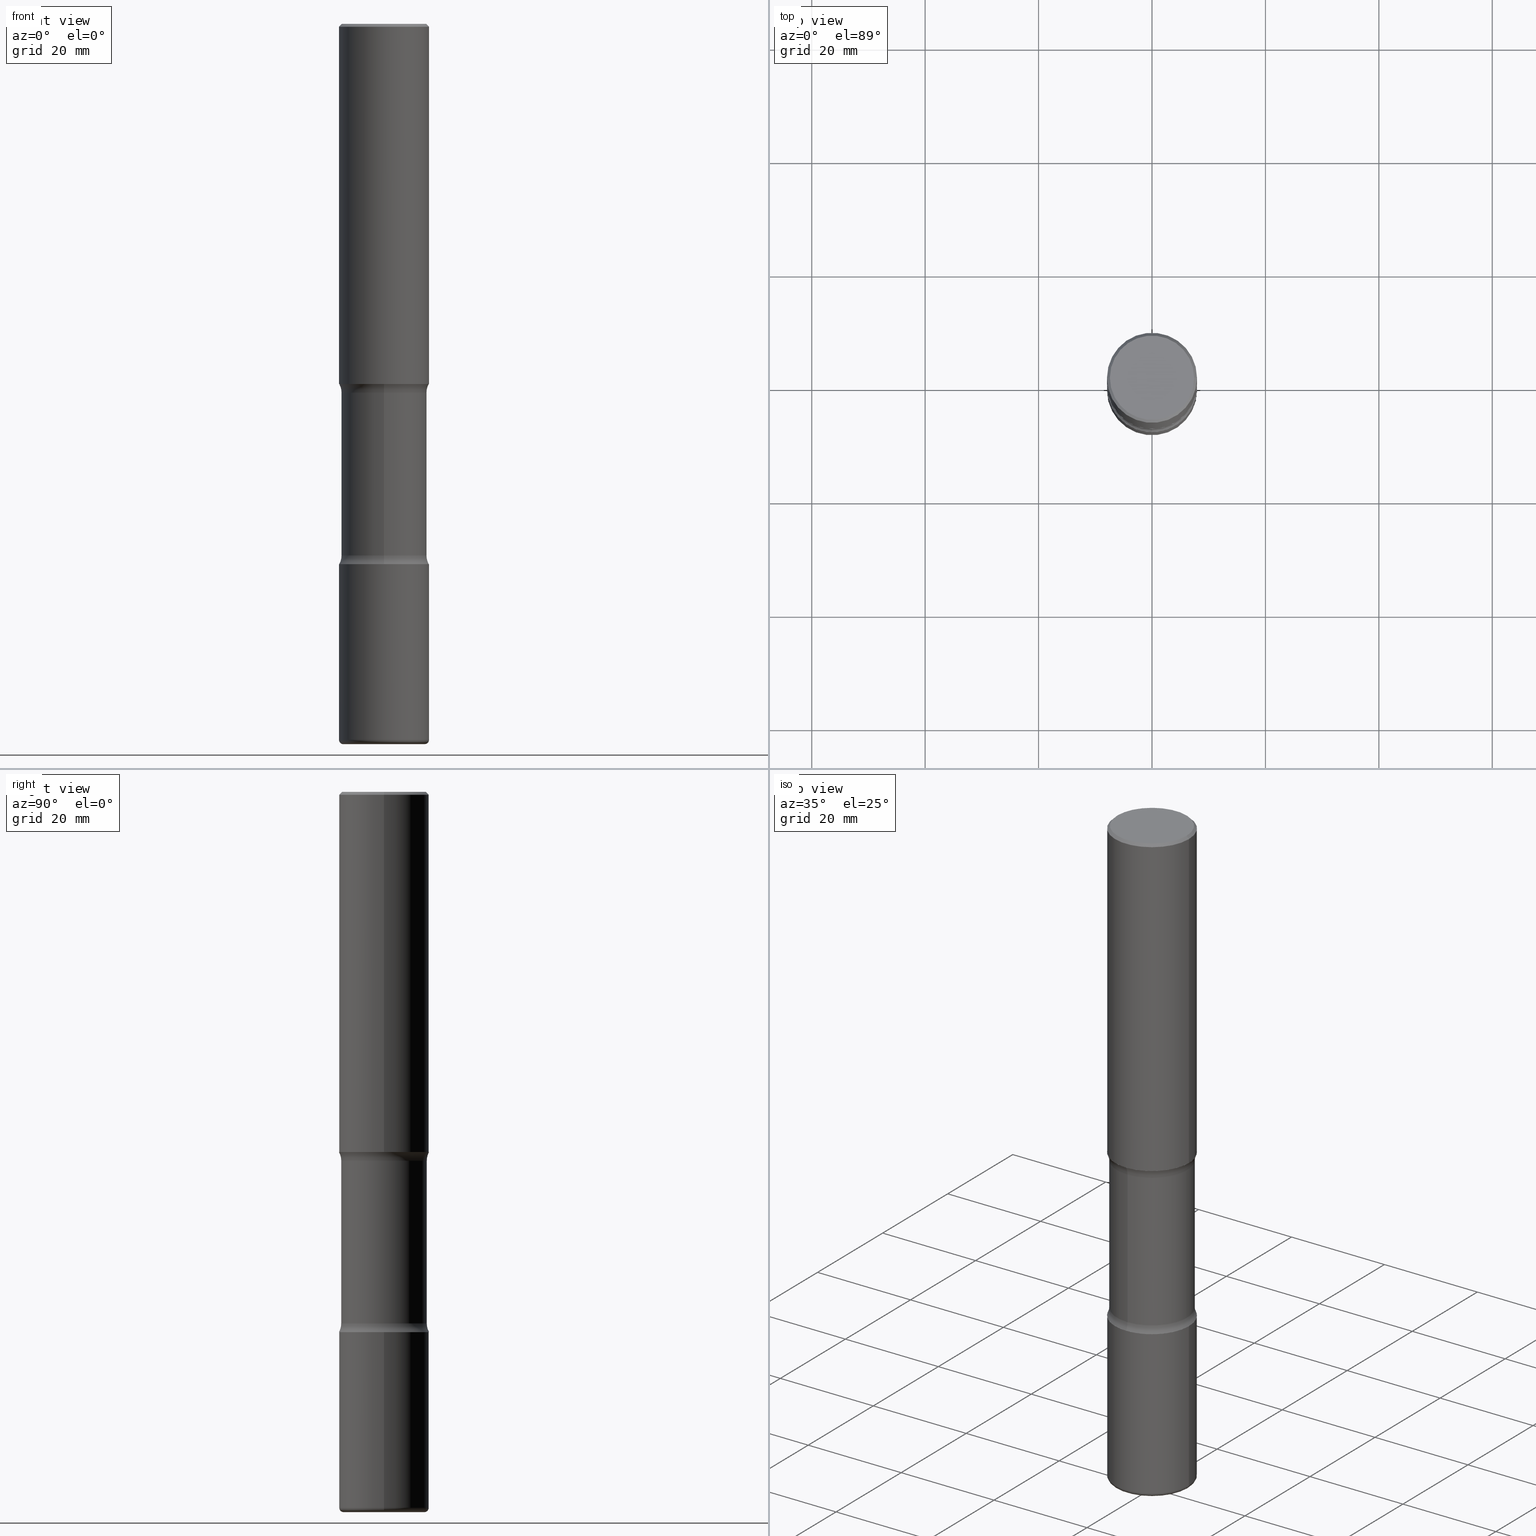
[diagram: canonical four-view strip — front | top / right | iso, engineering-drawing reading convention]
A machine part, canonical four-view strip (front | top / right | iso — engineering-drawing reading convention). The complete STEP part file that produces these views, byte-faithful:
ISO-10303-21;
HEADER;
FILE_DESCRIPTION (( 'STEP AP203' ),
    '1' );
FILE_NAME ('37903.STEP',
    '2024-03-02T01:14:10',
    ( '' ),
    ( '' ),
    'SwSTEP 2.0',
    'SolidWorks 2023',
    '' );
FILE_SCHEMA (( 'CONFIG_CONTROL_DESIGN' ));
ENDSEC;

DATA;
#1 = AXIS2_PLACEMENT_3D ( 'NONE', #462, #86, #421 ) ;
#2 = CC_DESIGN_APPROVAL ( #112, ( #145 ) ) ;
#3 = ORIENTED_EDGE ( 'NONE', *, *, #83, .F. ) ;
#4 = SHAPE_DEFINITION_REPRESENTATION ( #249, #381 ) ;
#5 = DIRECTION ( 'NONE',  ( -0.7071067811865472397, 2.468850131082253905E-15, -0.7071067811865477948 ) ) ;
#6 = ADVANCED_FACE ( 'NONE', ( #147 ), #72, .F. ) ;
#7 = ORIENTED_EDGE ( 'NONE', *, *, #458, .F. ) ;
#8 = DIRECTION ( 'NONE',  ( 6.982962677686266711E-15, 1.000000000000000000, -3.680805717779217644E-15 ) ) ;
#9 = EDGE_CURVE ( 'NONE', #425, #125, #460, .T. ) ;
#10 = ORIENTED_EDGE ( 'NONE', *, *, #92, .T. ) ;
#11 = CARTESIAN_POINT ( 'NONE',  ( 6.166278489433880529E-29, -9.076584013649411488E-15, -2.560515364784490711 ) ) ;
#12 = AXIS2_PLACEMENT_3D ( 'NONE', #511, #77, #247 ) ;
#13 = EDGE_LOOP ( 'NONE', ( #450, #531, #310, #355 ) ) ;
#14 = ADVANCED_FACE ( 'NONE', ( #19 ), #374, .T. ) ;
#15 = DIRECTION ( 'NONE',  ( 2.521457479434076939E-29, -3.382661233743975076E-15, -1.000000000000000000 ) ) ;
#16 = CARTESIAN_POINT ( 'NONE',  ( 0.3124999999999998890, -2.213735251080466123E-15, -0.02000000000000006981 ) ) ;
#17 = FACE_OUTER_BOUND ( 'NONE', #49, .T. ) ;
#18 = EDGE_LOOP ( 'NONE', ( #512, #192 ) ) ;
#19 = FACE_OUTER_BOUND ( 'NONE', #501, .T. ) ;
#20 = CARTESIAN_POINT ( 'NONE',  ( -2.036710343088299976E-15, -0.2968750000000173195, -4.999999999999999112 ) ) ;
#21 = EDGE_LOOP ( 'NONE', ( #281, #133 ) ) ;
#22 = PERSON ( 'UNSPECIFIED', 'UNSPECIFIED', 'UNSPECIFIED', ('UNSPECIFIED'), ('UNSPECIFIED'), ('UNSPECIFIED') ) ;
#23 = DIRECTION ( 'NONE',  ( 6.982962677686266711E-15, 1.000000000000000000, -3.680805717779217644E-15 ) ) ;
#24 = EDGE_CURVE ( 'NONE', #520, #395, #144, .T. ) ;
#25 = DIRECTION ( 'NONE',  ( 1.000000000000000000, -6.982962677686266711E-15, 4.876176775795936353E-29 ) ) ;
#26 = CONICAL_SURFACE ( 'NONE', #309, 0.3124999999999998890, 0.7853981633974479459 ) ;
#27 = APPROVAL ( #555, 'UNSPECIFIED' ) ;
#28 = TOROIDAL_SURFACE ( 'NONE', #524, 0.2825000000000003064, 0.03000000000000082462 ) ;
#29 = DIRECTION ( 'NONE',  ( -1.000000000000000000, 7.105427357600993970E-15, 0.000000000000000000 ) ) ;
#30 = PERSON_AND_ORGANIZATION ( #22, #124 ) ;
#31 = EDGE_CURVE ( 'NONE', #195, #251, #452, .T. ) ;
#32 = FACE_OUTER_BOUND ( 'NONE', #473, .T. ) ;
#33 = PERSON_AND_ORGANIZATION_ROLE ( 'design_supplier' ) ;
#34 = CARTESIAN_POINT ( 'NONE',  ( 0.000000000000000000, 0.000000000000000000, 0.000000000000000000 ) ) ;
#35 = AXIS2_PLACEMENT_3D ( 'NONE', #218, #521, #479 ) ;
#36 = CALENDAR_DATE ( 2024, 1, 3 ) ;
#37 = VECTOR ( 'NONE', #305, 39.37007874015748143 ) ;
#38 = DIRECTION ( 'NONE',  ( -1.000000000000000000, 6.982962677686266711E-15, 0.000000000000000000 ) ) ;
#39 = ORIENTED_EDGE ( 'NONE', *, *, #92, .F. ) ;
#40 = APPROVAL_ROLE ( '' ) ;
#41 = DIRECTION ( 'NONE',  ( -2.445468806185136597E-29, 3.491481338843145583E-15, 1.000000000000000000 ) ) ;
#42 = ORIENTED_EDGE ( 'NONE', *, *, #389, .F. ) ;
#43 = EDGE_CURVE ( 'NONE', #103, #52, #529, .T. ) ;
#44 = CARTESIAN_POINT ( 'NONE',  ( 9.170508023194261117E-29, -1.309305502066179584E-14, -3.749999999999999556 ) ) ;
#45 = ORIENTED_EDGE ( 'NONE', *, *, #9, .T. ) ;
#46 = PRODUCT_DEFINITION_FORMATION_WITH_SPECIFIED_SOURCE ( 'ANY', '', #165, .NOT_KNOWN. ) ;
#47 = DIRECTION ( 'NONE',  ( 2.521457479434076939E-29, -3.382661233743974681E-15, -1.000000000000000000 ) ) ;
#48 = AXIS2_PLACEMENT_3D ( 'NONE', #445, #61, #303 ) ;
#49 = EDGE_LOOP ( 'NONE', ( #388, #219 ) ) ;
#50 = DIRECTION ( 'NONE',  ( 1.000000000000000000, -6.982962677686266711E-15, 4.876176775795936353E-29 ) ) ;
#51 = EDGE_CURVE ( 'NONE', #178, #466, #533, .T. ) ;
#52 = VERTEX_POINT ( 'NONE', #16 ) ;
#53 = PLANE ( 'NONE',  #491 ) ;
#54 = PRODUCT_RELATED_PRODUCT_CATEGORY ( 'detail', '', ( #165 ) ) ;
#55 = EDGE_LOOP ( 'NONE', ( #522, #66, #91, #106 ) ) ;
#56 = DIRECTION ( 'NONE',  ( -6.982962677686266711E-15, -1.000000000000000000, 3.491481338843145583E-15 ) ) ;
#57 = CIRCLE ( 'NONE', #127, 0.2968750000000000000 ) ;
#58 = VERTEX_POINT ( 'NONE', #498 ) ;
#59 = CARTESIAN_POINT ( 'NONE',  ( -0.3125000000000002220, -2.178820437692046306E-15, -2.499999999999999556 ) ) ;
#60 = MANIFOLD_SOLID_BREP ( 'Body-Move/Copy2[1]', #380 ) ;
#61 = DIRECTION ( 'NONE',  ( 2.521457479434076939E-29, -3.382661233743975076E-15, -1.000000000000000000 ) ) ;
#62 = CARTESIAN_POINT ( 'NONE',  ( -0.2825000000000003064, -1.534537902552814895E-14, -4.969999999999999751 ) ) ;
#63 = ORIENTED_EDGE ( 'NONE', *, *, #502, .F. ) ;
#64 = CARTESIAN_POINT ( 'NONE',  ( -0.2825000000000003064, -1.529116983524678288E-14, -5.000000000000000888 ) ) ;
#65 = AXIS2_PLACEMENT_3D ( 'NONE', #536, #200, #143 ) ;
#66 = ORIENTED_EDGE ( 'NONE', *, *, #122, .T. ) ;
#67 = AXIS2_PLACEMENT_3D ( 'NONE', #151, #398, #407 ) ;
#68 = CARTESIAN_POINT ( 'NONE',  ( 0.3125000000000007216, -1.953483809082739329E-14, -4.969999999999999751 ) ) ;
#69 = DIRECTION ( 'NONE',  ( -2.445468806185136597E-29, 3.491481338843145583E-15, 1.000000000000000000 ) ) ;
#70 = ADVANCED_FACE ( 'NONE', ( #437 ), #224, .T. ) ;
#71 = AXIS2_PLACEMENT_3D ( 'NONE', #493, #193, #108 ) ;
#72 = TOROIDAL_SURFACE ( 'NONE', #67, 0.4218750000000001110, 0.1250000000000001388 ) ;
#73 = APPROVAL_PERSON_ORGANIZATION ( #423, #27, #170 ) ;
#74 =( CONVERSION_BASED_UNIT ( 'INCH', #121 ) LENGTH_UNIT ( ) NAMED_UNIT ( #382 ) );
#75 = DIRECTION ( 'NONE',  ( 2.521457479434076939E-29, -3.382661233743974681E-15, -1.000000000000000000 ) ) ;
#76 = CC_DESIGN_PERSON_AND_ORGANIZATION_ASSIGNMENT ( #30, #33, ( #46 ) ) ;
#77 = DIRECTION ( 'NONE',  ( 2.521457479434076939E-29, -3.382661233743975076E-15, -1.000000000000000000 ) ) ;
#78 = DATE_AND_TIME ( #339, #206 ) ;
#79 = CARTESIAN_POINT ( 'NONE',  ( -2.894272592809775342E-15, -0.4218750000000130451, -3.689484635215506625 ) ) ;
#80 = COORDINATED_UNIVERSAL_TIME_OFFSET ( 5, 0, .BEHIND. ) ;
#81 = AXIS2_PLACEMENT_3D ( 'NONE', #292, #75, #245 ) ;
#82 = DIRECTION ( 'NONE',  ( -2.438088387897960049E-29, 3.491481338843145188E-15, 1.000000000000000000 ) ) ;
#83 = EDGE_CURVE ( 'NONE', #168, #251, #182, .T. ) ;
#84 = VERTEX_POINT ( 'NONE', #296 ) ;
#85 = APPLICATION_PROTOCOL_DEFINITION ( 'international standard', 'config_control_design', 1994, #197 ) ;
#86 = DIRECTION ( 'NONE',  ( 2.438088387897960049E-29, -3.491481338843145188E-15, -1.000000000000000000 ) ) ;
#87 = ORIENTED_EDGE ( 'NONE', *, *, #51, .F. ) ;
#88 = ORIENTED_EDGE ( 'NONE', *, *, #51, .T. ) ;
#89 = DIRECTION ( 'NONE',  ( -2.521457479434076939E-29, 3.382661233743974681E-15, 1.000000000000000000 ) ) ;
#90 = CONICAL_SURFACE ( 'NONE', #422, 0.3124999999999998890, 0.7853981633974479459 ) ;
#91 = ORIENTED_EDGE ( 'NONE', *, *, #223, .T. ) ;
#92 = EDGE_CURVE ( 'NONE', #195, #216, #517, .T. ) ;
#93 = CARTESIAN_POINT ( 'NONE',  ( -0.3125000000000000000, 2.220446049250313081E-15, -1.537167215704658232E-29 ) ) ;
#94 = ORIENTED_EDGE ( 'NONE', *, *, #164, .F. ) ;
#95 = CARTESIAN_POINT ( 'NONE',  ( 1.222734403092568523E-28, -1.745740669421573304E-14, -5.000000000000000888 ) ) ;
#96 = DIRECTION ( 'NONE',  ( 6.982962677686265133E-15, 1.000000000000000000, -3.680805717779217644E-15 ) ) ;
#97 = VECTOR ( 'NONE', #369, 39.37007874015748143 ) ;
#98 = CARTESIAN_POINT ( 'NONE',  ( -2.143905624303545238E-15, -0.3125000000000091593, -2.499999999999998668 ) ) ;
#99 = AXIS2_PLACEMENT_3D ( 'NONE', #149, #490, #404 ) ;
#100 = APPROVAL_PERSON_ORGANIZATION ( #510, #112, #246 ) ;
#101 = DIRECTION ( 'NONE',  ( 6.860497997771529985E-15, 1.000000000000000000, 0.000000000000000000 ) ) ;
#102 = CARTESIAN_POINT ( 'NONE',  ( -2.090307983695922804E-15, -0.2968750000000128786, -3.689484635215507069 ) ) ;
#103 = VERTEX_POINT ( 'NONE', #205 ) ;
#104 = EDGE_CURVE ( 'NONE', #401, #52, #409, .T. ) ;
#105 = DIRECTION ( 'NONE',  ( -1.000000000000000000, 6.982962677686266711E-15, 0.000000000000000000 ) ) ;
#106 = ORIENTED_EDGE ( 'NONE', *, *, #169, .F. ) ;
#107 = ADVANCED_FACE ( 'NONE', ( #508 ), #348, .F. ) ;
#108 = DIRECTION ( 'NONE',  ( 1.000000000000000000, -6.982962677686266711E-15, 0.000000000000000000 ) ) ;
#109 = EDGE_LOOP ( 'NONE', ( #156, #118, #279, #509 ) ) ;
#110 = TOROIDAL_SURFACE ( 'NONE', #499, 0.4218750000000000555, 0.1250000000000000000 ) ;
#111 = CARTESIAN_POINT ( 'NONE',  ( 1.215397996674012835E-28, -1.735266225405043336E-14, -4.969999999999999751 ) ) ;
#112 = APPROVAL ( #420, 'UNSPECIFIED' ) ;
#113 = CARTESIAN_POINT ( 'NONE',  ( 2.945937379648955300E-15, 0.4218749999999909517, -2.560515364784492487 ) ) ;
#114 = VERTEX_POINT ( 'NONE', #337 ) ;
#115 =( NAMED_UNIT ( * ) PLANE_ANGLE_UNIT ( ) SI_UNIT ( $, .RADIAN. ) );
#116 = AXIS2_PLACEMENT_3D ( 'NONE', #196, #153, #453 ) ;
#117 = EDGE_CURVE ( 'NONE', #349, #466, #442, .T. ) ;
#118 = ORIENTED_EDGE ( 'NONE', *, *, #405, .T. ) ;
#119 = AXIS2_PLACEMENT_3D ( 'NONE', #496, #359, #318 ) ;
#120 = CARTESIAN_POINT ( 'NONE',  ( -2.090307983695953569E-15, -0.2968750000000091038, -2.560515364784489822 ) ) ;
#121 = LENGTH_MEASURE_WITH_UNIT ( LENGTH_MEASURE( 0.02539999999999999897 ), #321 );
#122 = EDGE_CURVE ( 'NONE', #125, #425, #365, .T. ) ;
#123 = DIRECTION ( 'NONE',  ( 1.000000000000000000, -6.982962677686266711E-15, 0.000000000000000000 ) ) ;
#124 = ORGANIZATION ( 'UNSPECIFIED', 'UNSPECIFIED', '' ) ;
#125 = VERTEX_POINT ( 'NONE', #470 ) ;
#126 = CALENDAR_DATE ( 2024, 1, 3 ) ;
#127 = AXIS2_PLACEMENT_3D ( 'NONE', #523, #436, #530 ) ;
#128 = DIRECTION ( 'NONE',  ( -2.445468806185136597E-29, 3.491481338843145583E-15, 1.000000000000000000 ) ) ;
#129 = ORIENTED_EDGE ( 'NONE', *, *, #389, .T. ) ;
#130 = DIRECTION ( 'NONE',  ( 1.000000000000000000, -6.982962677686266711E-15, 4.876067333457692840E-29 ) ) ;
#131 = ORIENTED_EDGE ( 'NONE', *, *, #122, .F. ) ;
#132 = FACE_OUTER_BOUND ( 'NONE', #55, .T. ) ;
#133 = ORIENTED_EDGE ( 'NONE', *, *, #405, .F. ) ;
#134 = CARTESIAN_POINT ( 'NONE',  ( 1.232232987248685960E-28, -1.732138156284176685E-14, -5.000000000000000000 ) ) ;
#135 = AXIS2_PLACEMENT_3D ( 'NONE', #34, #203, #376 ) ;
#136 = EDGE_LOOP ( 'NONE', ( #3, #332 ) ) ;
#137 = LINE ( 'NONE', #350, #235 ) ;
#138 = ORIENTED_EDGE ( 'NONE', *, *, #402, .T. ) ;
#139 = DIRECTION ( 'NONE',  ( -1.000000000000000000, 6.982962677686265922E-15, -4.876176775795935793E-29 ) ) ;
#140 = ADVANCED_FACE ( 'NONE', ( #212 ), #90, .T. ) ;
#141 = ORIENTED_EDGE ( 'NONE', *, *, #202, .F. ) ;
#142 = AXIS2_PLACEMENT_3D ( 'NONE', #62, #366, #29 ) ;
#143 = DIRECTION ( 'NONE',  ( 6.982962677686265922E-15, 1.000000000000000000, -3.382661233743975076E-15 ) ) ;
#144 = CIRCLE ( 'NONE', #119, 0.3125000000000001665 ) ;
#145 = PRODUCT_DEFINITION ( 'UNKNOWN', '', #46, #341 ) ;
#146 = LOCAL_TIME ( 20, 14, 10.00000000000000000, #343 ) ;
#147 = FACE_OUTER_BOUND ( 'NONE', #463, .T. ) ;
#148 = DIRECTION ( 'NONE',  ( 2.521457479434076939E-29, -3.382661233743975076E-15, -1.000000000000000000 ) ) ;
#149 = CARTESIAN_POINT ( 'NONE',  ( 1.215397996674012835E-28, -1.735266225405043336E-14, -4.969999999999999751 ) ) ;
#150 = CARTESIAN_POINT ( 'NONE',  ( 0.000000000000000000, 0.000000000000000000, 0.000000000000000000 ) ) ;
#151 = CARTESIAN_POINT ( 'NONE',  ( 9.022519586318873617E-29, -1.288176675380345821E-14, -3.689484635215508401 ) ) ;
#152 = CARTESIAN_POINT ( 'NONE',  ( 9.170508023194261117E-29, -1.309305502066179584E-14, -3.749999999999999556 ) ) ;
#153 = DIRECTION ( 'NONE',  ( -2.445468806185136597E-29, 3.491481338843145583E-15, 1.000000000000000000 ) ) ;
#154 = DATE_TIME_ROLE ( 'classification_date' ) ;
#155 = ADVANCED_FACE ( 'NONE', ( #424 ), #300, .F. ) ;
#156 = ORIENTED_EDGE ( 'NONE', *, *, #268, .F. ) ;
#157 = DIRECTION ( 'NONE',  ( 0.7071067811865472397, -7.319954787623254468E-15, -0.7071067811865477948 ) ) ;
#158 = EDGE_CURVE ( 'NONE', #58, #52, #418, .T. ) ;
#159 = CIRCLE ( 'NONE', #480, 0.2825000000000003064 ) ;
#160 = CIRCLE ( 'NONE', #320, 0.2924999999999998157 ) ;
#161 = DATE_AND_TIME ( #36, #282 ) ;
#162 = CARTESIAN_POINT ( 'NONE',  ( 0.000000000000000000, 0.000000000000000000, 0.000000000000000000 ) ) ;
#163 = EDGE_LOOP ( 'NONE', ( #39, #186, #494, #313 ) ) ;
#164 = EDGE_CURVE ( 'NONE', #84, #349, #174, .T. ) ;
#165 = PRODUCT ( '37903', '37903', '', ( #297 ) ) ;
#166 = PERSON_AND_ORGANIZATION_ROLE ( 'creator' ) ;
#167 = DIRECTION ( 'NONE',  ( 6.982962677686266711E-15, 1.000000000000000000, -3.680805717779217644E-15 ) ) ;
#168 = VERTEX_POINT ( 'NONE', #427 ) ;
#169 = EDGE_CURVE ( 'NONE', #395, #520, #472, .T. ) ;
#170 = APPROVAL_ROLE ( '' ) ;
#171 = CARTESIAN_POINT ( 'NONE',  ( 2.073067044938200360E-15, 0.2968749999999871214, -3.689484635215509289 ) ) ;
#172 = CIRCLE ( 'NONE', #333, 0.3125000000000001665 ) ;
#173 = ORIENTED_EDGE ( 'NONE', *, *, #259, .T. ) ;
#174 = CIRCLE ( 'NONE', #12, 0.3125000000000001665 ) ;
#175 = CARTESIAN_POINT ( 'NONE',  ( 1.215397996674012835E-28, -1.735266225405043336E-14, -4.969999999999999751 ) ) ;
#176 = ORIENTED_EDGE ( 'NONE', *, *, #458, .T. ) ;
#177 = ADVANCED_FACE ( 'NONE', ( #550 ), #379, .T. ) ;
#178 = VERTEX_POINT ( 'NONE', #171 ) ;
#179 = CARTESIAN_POINT ( 'NONE',  ( 2.073067044938171961E-15, 0.2968749999999909517, -2.560515364784492043 ) ) ;
#180 = ORIENTED_EDGE ( 'NONE', *, *, #311, .T. ) ;
#181 = PLANE ( 'NONE',  #504 ) ;
#182 = CIRCLE ( 'NONE', #48, 0.3125000000000002776 ) ;
#183 = ORIENTED_EDGE ( 'NONE', *, *, #485, .T. ) ;
#184 = EDGE_CURVE ( 'NONE', #125, #395, #519, .T. ) ;
#185 = DIRECTION ( 'NONE',  ( -2.445468806185136597E-29, 3.491481338843145583E-15, 1.000000000000000000 ) ) ;
#186 = ORIENTED_EDGE ( 'NONE', *, *, #31, .T. ) ;
#187 = DIRECTION ( 'NONE',  ( 6.982962677686265922E-15, 1.000000000000000000, -3.496765431890253764E-15 ) ) ;
#188 = ORIENTED_EDGE ( 'NONE', *, *, #43, .F. ) ;
#189 = LINE ( 'NONE', #20, #97 ) ;
#190 = AXIS2_PLACEMENT_3D ( 'NONE', #44, #128, #419 ) ;
#191 = ADVANCED_FACE ( 'NONE', ( #390 ), #546, .F. ) ;
#192 = ORIENTED_EDGE ( 'NONE', *, *, #207, .F. ) ;
#193 = DIRECTION ( 'NONE',  ( -2.445468806185136597E-29, 3.491481338843145583E-15, 1.000000000000000000 ) ) ;
#194 = ADVANCED_FACE ( 'NONE', ( #32 ), #334, .T. ) ;
#195 = VERTEX_POINT ( 'NONE', #120 ) ;
#196 = CARTESIAN_POINT ( 'NONE',  ( 4.890937612370289799E-31, -6.982962677686315028E-17, -0.02000000000000006981 ) ) ;
#197 = APPLICATION_CONTEXT ( 'configuration controlled 3d designs of mechanical parts and assemblies' ) ;
#198 = DIRECTION ( 'NONE',  ( 2.521457479434076939E-29, -3.382661233743975076E-15, -1.000000000000000000 ) ) ;
#199 = AXIS2_PLACEMENT_3D ( 'NONE', #95, #185, #482 ) ;
#200 = DIRECTION ( 'NONE',  ( 2.521457479434076939E-29, -3.382661233743975076E-15, -1.000000000000000000 ) ) ;
#201 = APPLICATION_PROTOCOL_DEFINITION ( 'international standard', 'config_control_design', 1994, #285 ) ;
#202 = EDGE_CURVE ( 'NONE', #58, #323, #160, .T. ) ;
#203 = DIRECTION ( 'NONE',  ( -2.445468806185136597E-29, 3.491481338843145583E-15, 1.000000000000000000 ) ) ;
#204 = SECURITY_CLASSIFICATION_LEVEL ( 'unclassified' ) ;
#205 = CARTESIAN_POINT ( 'NONE',  ( 0.3125000000000002220, -1.091087918388482329E-14, -2.499999999999999556 ) ) ;
#206 = LOCAL_TIME ( 20, 14, 10.00000000000000000, #256 ) ;
#207 = EDGE_CURVE ( 'NONE', #396, #114, #346, .T. ) ;
#208 = DATE_TIME_ROLE ( 'creation_date' ) ;
#209 = DIRECTION ( 'NONE',  ( -2.445468806185136597E-29, 3.491481338843145583E-15, 1.000000000000000000 ) ) ;
#210 = ADVANCED_FACE ( 'NONE', ( #394 ), #53, .T. ) ;
#211 = ORIENTED_EDGE ( 'NONE', *, *, #351, .F. ) ;
#212 = FACE_OUTER_BOUND ( 'NONE', #433, .T. ) ;
#213 = ORIENTED_EDGE ( 'NONE', *, *, #169, .T. ) ;
#214 = DIRECTION ( 'NONE',  ( -2.445468806185136877E-29, 3.491481338843145188E-15, 1.000000000000000000 ) ) ;
#215 = CIRCLE ( 'NONE', #345, 0.1250000000000000000 ) ;
#216 = VERTEX_POINT ( 'NONE', #179 ) ;
#217 = AXIS2_PLACEMENT_3D ( 'NONE', #411, #228, #101 ) ;
#218 = CARTESIAN_POINT ( 'NONE',  ( 6.166278489433880529E-29, -9.076584013649411488E-15, -2.560515364784490711 ) ) ;
#219 = ORIENTED_EDGE ( 'NONE', *, *, #506, .T. ) ;
#220 = CARTESIAN_POINT ( 'NONE',  ( -2.143905624303512894E-15, -0.3125000000000132672, -3.749999999999998668 ) ) ;
#221 = ORIENTED_EDGE ( 'NONE', *, *, #306, .T. ) ;
#222 = LINE ( 'NONE', #397, #261 ) ;
#223 = EDGE_CURVE ( 'NONE', #425, #520, #137, .T. ) ;
#224 = CYLINDRICAL_SURFACE ( 'NONE', #399, 0.2968750000000000000 ) ;
#225 = CC_DESIGN_SECURITY_CLASSIFICATION ( #322, ( #46 ) ) ;
#226 = CARTESIAN_POINT ( 'NONE',  ( 6.018686173901665994E-29, -8.864728478481826400E-15, -2.499999999999999556 ) ) ;
#227 = AXIS2_PLACEMENT_3D ( 'NONE', #162, #254, #257 ) ;
#228 = DIRECTION ( 'NONE',  ( 1.000000000000000000, -6.860497997771530774E-15, 4.842131541558068249E-29 ) ) ;
#229 = LINE ( 'NONE', #275, #319 ) ;
#230 = VERTEX_POINT ( 'NONE', #59 ) ;
#231 = ADVANCED_FACE ( 'NONE', ( #271 ), #360, .T. ) ;
#232 = DIRECTION ( 'NONE',  ( -1.000000000000000000, 6.982962677686265922E-15, -4.883557194083112340E-29 ) ) ;
#233 = CIRCLE ( 'NONE', #71, 0.3125000000000002220 ) ;
#234 = CARTESIAN_POINT ( 'NONE',  ( 2.945937379648984488E-15, 0.4218749999999872324, -3.689484635215510178 ) ) ;
#235 = VECTOR ( 'NONE', #315, 39.37007874015748143 ) ;
#236 = ORIENTED_EDGE ( 'NONE', *, *, #117, .F. ) ;
#237 = CARTESIAN_POINT ( 'NONE',  ( 6.113672015462840371E-29, -8.728703347107863365E-15, -2.499999999999999556 ) ) ;
#238 = FACE_OUTER_BOUND ( 'NONE', #363, .T. ) ;
#239 = CARTESIAN_POINT ( 'NONE',  ( 0.3125000000000001665, -1.527523085743875418E-14, -3.749999999999999556 ) ) ;
#240 =( GEOMETRIC_REPRESENTATION_CONTEXT ( 3 ) GLOBAL_UNCERTAINTY_ASSIGNED_CONTEXT ( ( #269 ) ) GLOBAL_UNIT_ASSIGNED_CONTEXT ( ( #74, #115, #514 ) ) REPRESENTATION_CONTEXT ( 'NONE', 'WORKASPACE' ) );
#241 = AXIS2_PLACEMENT_3D ( 'NONE', #515, #468, #123 ) ;
#242 = CIRCLE ( 'NONE', #451, 0.2924999999999998157 ) ;
#243 = MANIFOLD_SOLID_BREP ( 'Body-Move/Copy2[2]', #335 ) ;
#244 = APPROVAL_DATE_TIME ( #78, #112 ) ;
#245 = DIRECTION ( 'NONE',  ( 6.982962677686265922E-15, 1.000000000000000000, -3.382661233743974681E-15 ) ) ;
#246 = APPROVAL_ROLE ( '' ) ;
#247 = DIRECTION ( 'NONE',  ( 6.982962677686265133E-15, 1.000000000000000000, -3.496765431890254947E-15 ) ) ;
#248 = CARTESIAN_POINT ( 'NONE',  ( -1.043851414335219820E-46, 1.490343170380447200E-32, 4.268512490100411279E-18 ) ) ;
#249 = PRODUCT_DEFINITION_SHAPE ( 'NONE', 'NONE',  #145 ) ;
#250 = APPROVAL ( #290, 'UNSPECIFIED' ) ;
#251 = VERTEX_POINT ( 'NONE', #98 ) ;
#252 = VECTOR ( 'NONE', #214, 39.37007874015748143 ) ;
#253 = DATE_AND_TIME ( #507, #364 ) ;
#254 = DIRECTION ( 'NONE',  ( -2.445468806185136597E-29, 3.491481338843145583E-15, 1.000000000000000000 ) ) ;
#255 = ORIENTED_EDGE ( 'NONE', *, *, #158, .F. ) ;
#256 = COORDINATED_UNIVERSAL_TIME_OFFSET ( 5, 0, .BEHIND. ) ;
#257 = DIRECTION ( 'NONE',  ( 1.000000000000000000, -6.982962677686266711E-15, 4.876176775795936353E-29 ) ) ;
#258 = ORIENTED_EDGE ( 'NONE', *, *, #9, .F. ) ;
#259 = EDGE_CURVE ( 'NONE', #114, #425, #525, .T. ) ;
#260 = CARTESIAN_POINT ( 'NONE',  ( -0.2924999999999998157, 2.077431396611663005E-15, 4.268512490086005323E-18 ) ) ;
#261 = VECTOR ( 'NONE', #47, 39.37007874015748143 ) ;
#262 = ORIENTED_EDGE ( 'NONE', *, *, #223, .F. ) ;
#263 = VECTOR ( 'NONE', #537, 39.37007874015748143 ) ;
#264 = CC_DESIGN_PERSON_AND_ORGANIZATION_ASSIGNMENT ( #336, #377, ( #322 ) ) ;
#265 = CARTESIAN_POINT ( 'NONE',  ( 0.000000000000000000, 0.000000000000000000, 0.000000000000000000 ) ) ;
#266 = ORIENTED_EDGE ( 'NONE', *, *, #202, .T. ) ;
#267 = DIRECTION ( 'NONE',  ( 6.982962677686265922E-15, 1.000000000000000000, -3.382661233743975076E-15 ) ) ;
#268 = EDGE_CURVE ( 'NONE', #230, #401, #353, .T. ) ;
#269 = UNCERTAINTY_MEASURE_WITH_UNIT (LENGTH_MEASURE( 1.000000000000000082E-05 ), #74, 'distance_accuracy_value', 'NONE');
#270 = ORIENTED_EDGE ( 'NONE', *, *, #324, .F. ) ;
#271 = FACE_OUTER_BOUND ( 'NONE', #540, .T. ) ;
#272 = CARTESIAN_POINT ( 'NONE',  ( 1.232232987248685960E-28, -1.732138156284176685E-14, -5.000000000000000000 ) ) ;
#273 = CIRCLE ( 'NONE', #354, 0.2968750000000000000 ) ;
#274 = AXIS2_PLACEMENT_3D ( 'NONE', #175, #41, #340 ) ;
#275 = CARTESIAN_POINT ( 'NONE',  ( -0.3124999999999998890, 2.112346210000094260E-15, -0.02000000000000006981 ) ) ;
#276 = AXIS2_PLACEMENT_3D ( 'NONE', #326, #535, #447 ) ;
#277 = ORIENTED_EDGE ( 'NONE', *, *, #158, .T. ) ;
#278 = CARTESIAN_POINT ( 'NONE',  ( 6.171273093058203090E-29, -9.069431456984199816E-15, -2.560515364784490711 ) ) ;
#279 = ORIENTED_EDGE ( 'NONE', *, *, #43, .T. ) ;
#280 = FACE_OUTER_BOUND ( 'NONE', #304, .T. ) ;
#281 = ORIENTED_EDGE ( 'NONE', *, *, #488, .F. ) ;
#282 = LOCAL_TIME ( 20, 14, 10.00000000000000000, #299 ) ;
#283 = DIRECTION ( 'NONE',  ( 1.000000000000000000, -6.982962677686269077E-15, 4.883557194083114022E-29 ) ) ;
#284 = AXIS2_PLACEMENT_3D ( 'NONE', #438, #56, #317 ) ;
#285 = APPLICATION_CONTEXT ( 'configuration controlled 3d designs of mechanical parts and assemblies' ) ;
#286 = PLANE ( 'NONE',  #378 ) ;
#287 = EDGE_CURVE ( 'NONE', #251, #168, #357, .T. ) ;
#288 = DIRECTION ( 'NONE',  ( -1.000000000000000000, 6.982962677686265922E-15, -4.876176775795935793E-29 ) ) ;
#289 = CC_DESIGN_PERSON_AND_ORGANIZATION_ASSIGNMENT ( #552, #467, ( #165 ) ) ;
#290 = APPROVAL_STATUS ( 'not_yet_approved' ) ;
#291 = AXIS2_PLACEMENT_3D ( 'NONE', #544, #375, #474 ) ;
#292 = CARTESIAN_POINT ( 'NONE',  ( 6.113672015462840371E-29, -8.728703347107863365E-15, -2.499999999999999556 ) ) ;
#293 = CLOSED_SHELL ( 'NONE', ( #70, #6, #331, #295, #191, #314, #542, #231 ) ) ;
#294 = ORIENTED_EDGE ( 'NONE', *, *, #24, .T. ) ;
#295 = ADVANCED_FACE ( 'NONE', ( #400 ), #110, .F. ) ;
#296 = CARTESIAN_POINT ( 'NONE',  ( 2.182175836777050644E-15, 0.3124999999999870104, -3.750000000000000888 ) ) ;
#297 = MECHANICAL_CONTEXT ( 'NONE', #197, 'mechanical' ) ;
#298 = DIRECTION ( 'NONE',  ( 2.521457479434076939E-29, -3.382661233743975076E-15, -1.000000000000000000 ) ) ;
#299 = COORDINATED_UNIVERSAL_TIME_OFFSET ( 5, 0, .BEHIND. ) ;
#300 = PLANE ( 'NONE',  #392 ) ;
#301 = ORIENTED_EDGE ( 'NONE', *, *, #117, .T. ) ;
#302 = AXIS2_PLACEMENT_3D ( 'NONE', #226, #312, #187 ) ;
#303 = DIRECTION ( 'NONE',  ( 6.982962677686265922E-15, 1.000000000000000000, -3.496765431890253764E-15 ) ) ;
#304 = EDGE_LOOP ( 'NONE', ( #141, #277, #176, #435 ) ) ;
#305 = DIRECTION ( 'NONE',  ( -2.445468806185136877E-29, 3.491481338843145188E-15, 1.000000000000000000 ) ) ;
#306 = EDGE_CURVE ( 'NONE', #466, #178, #57, .T. ) ;
#307 = EDGE_LOOP ( 'NONE', ( #45, #393, #342, #262 ) ) ;
#308 = CYLINDRICAL_SURFACE ( 'NONE', #558, 0.3125000000000002776 ) ;
#309 = AXIS2_PLACEMENT_3D ( 'NONE', #372, #413, #105 ) ;
#310 = ORIENTED_EDGE ( 'NONE', *, *, #527, .T. ) ;
#311 = EDGE_CURVE ( 'NONE', #323, #401, #229, .T. ) ;
#312 = DIRECTION ( 'NONE',  ( 2.521457479434076939E-29, -3.382661233743975076E-15, -1.000000000000000000 ) ) ;
#313 = ORIENTED_EDGE ( 'NONE', *, *, #527, .F. ) ;
#314 = ADVANCED_FACE ( 'NONE', ( #17 ), #181, .F. ) ;
#315 = DIRECTION ( 'NONE',  ( -2.445468806185136877E-29, 3.491481338843145188E-15, 1.000000000000000000 ) ) ;
#316 = CARTESIAN_POINT ( 'NONE',  ( 9.017921104037724021E-29, -1.288835204215942242E-14, -3.689484635215508401 ) ) ;
#317 = DIRECTION ( 'NONE',  ( 1.000000000000000000, -6.982962677686209124E-15, 0.000000000000000000 ) ) ;
#318 = DIRECTION ( 'NONE',  ( 1.000000000000000000, -6.982962677686265133E-15, 0.000000000000000000 ) ) ;
#319 = VECTOR ( 'NONE', #5, 39.37007874015748143 ) ;
#320 = AXIS2_PLACEMENT_3D ( 'NONE', #248, #209, #484 ) ;
#321 =( LENGTH_UNIT ( ) NAMED_UNIT ( * ) SI_UNIT ( $, .METRE. ) );
#322 = SECURITY_CLASSIFICATION ( '', '', #204 ) ;
#323 = VERTEX_POINT ( 'NONE', #260 ) ;
#324 = EDGE_CURVE ( 'NONE', #323, #58, #242, .T. ) ;
#325 = FACE_OUTER_BOUND ( 'NONE', #307, .T. ) ;
#326 = CARTESIAN_POINT ( 'NONE',  ( 1.215397996674012835E-28, -1.735266225405043336E-14, -4.969999999999999751 ) ) ;
#327 = DIRECTION ( 'NONE',  ( 6.982962677686265133E-15, 1.000000000000000000, -3.496765431890254947E-15 ) ) ;
#328 = AXIS2_PLACEMENT_3D ( 'NONE', #475, #298, #167 ) ;
#329 = FACE_OUTER_BOUND ( 'NONE', #385, .T. ) ;
#330 = DATE_AND_TIME ( #126, #146 ) ;
#331 = ADVANCED_FACE ( 'NONE', ( #477 ), #408, .F. ) ;
#332 = ORIENTED_EDGE ( 'NONE', *, *, #287, .F. ) ;
#333 = AXIS2_PLACEMENT_3D ( 'NONE', #152, #148, #327 ) ;
#334 = CYLINDRICAL_SURFACE ( 'NONE', #135, 0.3125000000000000000 ) ;
#335 = CLOSED_SHELL ( 'NONE', ( #194, #440, #140, #107, #155, #177 ) ) ;
#336 = PERSON_AND_ORGANIZATION ( #22, #124 ) ;
#337 = CARTESIAN_POINT ( 'NONE',  ( 0.2825000000000003064, -1.943009365066210307E-14, -5.000000000000000888 ) ) ;
#338 = ORIENTED_EDGE ( 'NONE', *, *, #502, .T. ) ;
#339 = CALENDAR_DATE ( 2024, 1, 3 ) ;
#340 = DIRECTION ( 'NONE',  ( 1.000000000000000000, -6.982962677686261977E-15, 0.000000000000000000 ) ) ;
#341 = DESIGN_CONTEXT ( 'detailed design', #285, 'design' ) ;
#342 = ORIENTED_EDGE ( 'NONE', *, *, #24, .F. ) ;
#343 = COORDINATED_UNIVERSAL_TIME_OFFSET ( 5, 0, .BEHIND. ) ;
#344 = CARTESIAN_POINT ( 'NONE',  ( -0.3125000000000002776, 2.220446049250315053E-15, -1.537167215704659353E-29 ) ) ;
#345 = AXIS2_PLACEMENT_3D ( 'NONE', #113, #232, #543 ) ;
#346 = CIRCLE ( 'NONE', #199, 0.2825000000000003064 ) ;
#347 = ORIENTED_EDGE ( 'NONE', *, *, #506, .F. ) ;
#348 = PLANE ( 'NONE',  #1 ) ;
#349 = VERTEX_POINT ( 'NONE', #220 ) ;
#350 = CARTESIAN_POINT ( 'NONE',  ( 0.3125000000000002776, -2.182175836776960319E-15, 1.523805242436231477E-29 ) ) ;
#351 = EDGE_CURVE ( 'NONE', #216, #178, #222, .T. ) ;
#352 = ORIENTED_EDGE ( 'NONE', *, *, #429, .T. ) ;
#353 = LINE ( 'NONE', #93, #37 ) ;
#354 = AXIS2_PLACEMENT_3D ( 'NONE', #278, #198, #23 ) ;
#355 = ORIENTED_EDGE ( 'NONE', *, *, #83, .T. ) ;
#356 = ADVANCED_FACE ( 'NONE', ( #132 ), #308, .T. ) ;
#357 = CIRCLE ( 'NONE', #302, 0.3125000000000002776 ) ;
#358 = DIRECTION ( 'NONE',  ( 2.438088387897960049E-29, -3.491481338843145188E-15, -1.000000000000000000 ) ) ;
#359 = DIRECTION ( 'NONE',  ( -2.445468806185136597E-29, 3.491481338843145583E-15, 1.000000000000000000 ) ) ;
#360 = CYLINDRICAL_SURFACE ( 'NONE', #541, 0.2968750000000000000 ) ;
#361 = DIRECTION ( 'NONE',  ( 6.982962677686266711E-15, 1.000000000000000000, -3.680805717779217644E-15 ) ) ;
#362 = DIRECTION ( 'NONE',  ( -2.445468806185136597E-29, 3.491481338843145583E-15, 1.000000000000000000 ) ) ;
#363 = EDGE_LOOP ( 'NONE', ( #294, #213 ) ) ;
#364 = LOCAL_TIME ( 20, 14, 10.00000000000000000, #80 ) ;
#365 = CIRCLE ( 'NONE', #274, 0.3125000000000003331 ) ;
#366 = DIRECTION ( 'NONE',  ( 7.105427357601001859E-15, 1.000000000000000000, -3.491481338843145583E-15 ) ) ;
#367 = CC_DESIGN_PERSON_AND_ORGANIZATION_ASSIGNMENT ( #464, #166, ( #46 ) ) ;
#368 = ORIENTED_EDGE ( 'NONE', *, *, #351, .T. ) ;
#369 = DIRECTION ( 'NONE',  ( 2.521457479434076939E-29, -3.382661233743974681E-15, -1.000000000000000000 ) ) ;
#370 = CARTESIAN_POINT ( 'NONE',  ( 0.3125000000000000000, -2.182175836776958347E-15, 1.523805242436230075E-29 ) ) ;
#371 = ADVANCED_FACE ( 'NONE', ( #325 ), #406, .T. ) ;
#372 = CARTESIAN_POINT ( 'NONE',  ( 4.890937612370289799E-31, -6.982962677686315028E-17, -0.02000000000000006981 ) ) ;
#373 = DIRECTION ( 'NONE',  ( -2.445468806185136597E-29, 3.491481338843145583E-15, 1.000000000000000000 ) ) ;
#374 = TOROIDAL_SURFACE ( 'NONE', #99, 0.2825000000000003064, 0.03000000000000082462 ) ;
#375 = DIRECTION ( 'NONE',  ( 0.000000000000000000, 0.000000000000000000, 1.000000000000000000 ) ) ;
#376 = DIRECTION ( 'NONE',  ( 1.000000000000000000, -6.982962677686266711E-15, 4.876176775795936353E-29 ) ) ;
#377 = PERSON_AND_ORGANIZATION_ROLE ( 'classification_officer' ) ;
#378 = AXIS2_PLACEMENT_3D ( 'NONE', #415, #455, #288 ) ;
#379 = CYLINDRICAL_SURFACE ( 'NONE', #227, 0.3125000000000000000 ) ;
#380 = CLOSED_SHELL ( 'NONE', ( #371, #448, #210, #14, #356, #559 ) ) ;
#381 = ADVANCED_BREP_SHAPE_REPRESENTATION ( '37903', ( #60, #243, #444, #291 ), #240 ) ;
#382 = DIMENSIONAL_EXPONENTS ( 1.000000000000000000, 0.000000000000000000, 0.000000000000000000, 0.000000000000000000, 0.000000000000000000, 0.000000000000000000, 0.000000000000000000 ) ;
#383 = COORDINATED_UNIVERSAL_TIME_OFFSET ( 5, 0, .BEHIND. ) ;
#384 = CARTESIAN_POINT ( 'NONE',  ( 4.890937612370289799E-31, -6.982962677686315028E-17, -0.02000000000000006981 ) ) ;
#385 = EDGE_LOOP ( 'NONE', ( #236, #94, #129, #88 ) ) ;
#386 = PERSON_AND_ORGANIZATION_ROLE ( 'creator' ) ;
#387 = CARTESIAN_POINT ( 'NONE',  ( 0.3124999999999998890, -2.213735251080466123E-15, -0.02000000000000006981 ) ) ;
#388 = ORIENTED_EDGE ( 'NONE', *, *, #164, .T. ) ;
#389 = EDGE_CURVE ( 'NONE', #84, #178, #459, .T. ) ;
#390 = FACE_OUTER_BOUND ( 'NONE', #136, .T. ) ;
#391 = CIRCLE ( 'NONE', #116, 0.3124999999999998890 ) ;
#392 = AXIS2_PLACEMENT_3D ( 'NONE', #553, #82, #556 ) ;
#393 = ORIENTED_EDGE ( 'NONE', *, *, #184, .T. ) ;
#394 = FACE_OUTER_BOUND ( 'NONE', #18, .T. ) ;
#395 = VERTEX_POINT ( 'NONE', #449 ) ;
#396 = VERTEX_POINT ( 'NONE', #64 ) ;
#397 = CARTESIAN_POINT ( 'NONE',  ( 2.073067044938233492E-15, 0.2968749999999827360, -5.000000000000000888 ) ) ;
#398 = DIRECTION ( 'NONE',  ( 2.521457479434076939E-29, -3.382661233743975076E-15, -1.000000000000000000 ) ) ;
#399 = AXIS2_PLACEMENT_3D ( 'NONE', #272, #441, #361 ) ;
#400 = FACE_OUTER_BOUND ( 'NONE', #13, .T. ) ;
#401 = VERTEX_POINT ( 'NONE', #497 ) ;
#402 = EDGE_CURVE ( 'NONE', #216, #195, #273, .T. ) ;
#403 = DIRECTION ( 'NONE',  ( -6.982962677686265922E-15, -1.000000000000000000, 3.382661233743974681E-15 ) ) ;
#404 = DIRECTION ( 'NONE',  ( 1.000000000000000000, -6.982962677686269077E-15, 4.883557194083114022E-29 ) ) ;
#405 = EDGE_CURVE ( 'NONE', #230, #103, #233, .T. ) ;
#406 = CYLINDRICAL_SURFACE ( 'NONE', #513, 0.3125000000000002776 ) ;
#407 = DIRECTION ( 'NONE',  ( 6.982962677686265922E-15, 1.000000000000000000, -3.382661233743975076E-15 ) ) ;
#408 = TOROIDAL_SURFACE ( 'NONE', #35, 0.4218750000000000555, 0.1250000000000000000 ) ;
#409 = CIRCLE ( 'NONE', #241, 0.3124999999999998890 ) ;
#410 = DIRECTION ( 'NONE',  ( -2.445468806185136597E-29, 3.491481338843145583E-15, 1.000000000000000000 ) ) ;
#411 = CARTESIAN_POINT ( 'NONE',  ( -2.894272592809803347E-15, -0.4218750000000091593, -2.560515364784489378 ) ) ;
#412 = DIRECTION ( 'NONE',  ( 1.000000000000000000, -6.982962677686266711E-15, 0.000000000000000000 ) ) ;
#413 = DIRECTION ( 'NONE',  ( 2.445468806185136597E-29, -3.491481338843145583E-15, -1.000000000000000000 ) ) ;
#414 = AXIS2_PLACEMENT_3D ( 'NONE', #234, #457, #500 ) ;
#415 = CARTESIAN_POINT ( 'NONE',  ( 9.170508023194261117E-29, -1.309305502066179584E-14, -3.749999999999999556 ) ) ;
#416 = APPROVAL_PERSON_ORGANIZATION ( #426, #250, #40 ) ;
#417 = CALENDAR_DATE ( 2024, 1, 3 ) ;
#418 = LINE ( 'NONE', #387, #432 ) ;
#419 = DIRECTION ( 'NONE',  ( 1.000000000000000000, -6.982962677686265133E-15, 0.000000000000000000 ) ) ;
#420 = APPROVAL_STATUS ( 'not_yet_approved' ) ;
#421 = DIRECTION ( 'NONE',  ( -1.000000000000000000, 6.982962677686265922E-15, -4.876176775795935793E-29 ) ) ;
#422 = AXIS2_PLACEMENT_3D ( 'NONE', #384, #465, #38 ) ;
#423 = PERSON_AND_ORGANIZATION ( #22, #124 ) ;
#424 = FACE_OUTER_BOUND ( 'NONE', #21, .T. ) ;
#425 = VERTEX_POINT ( 'NONE', #68 ) ;
#426 = PERSON_AND_ORGANIZATION ( #22, #124 ) ;
#427 = CARTESIAN_POINT ( 'NONE',  ( 2.182175836777019878E-15, 0.3124999999999913958, -2.500000000000000444 ) ) ;
#428 = ORIENTED_EDGE ( 'NONE', *, *, #207, .T. ) ;
#429 = EDGE_CURVE ( 'NONE', #114, #396, #159, .T. ) ;
#430 = CARTESIAN_POINT ( 'NONE',  ( -1.043851414335219820E-46, 1.490343170380447200E-32, 4.268512490100411279E-18 ) ) ;
#431 = AXIS2_PLACEMENT_3D ( 'NONE', #237, #446, #412 ) ;
#432 = VECTOR ( 'NONE', #157, 39.37007874015748143 ) ;
#433 = EDGE_LOOP ( 'NONE', ( #255, #270, #180, #554 ) ) ;
#434 = DIRECTION ( 'NONE',  ( -2.445468806185136597E-29, 3.491481338843145583E-15, 1.000000000000000000 ) ) ;
#435 = ORIENTED_EDGE ( 'NONE', *, *, #311, .F. ) ;
#436 = DIRECTION ( 'NONE',  ( 2.521457479434076939E-29, -3.382661233743975076E-15, -1.000000000000000000 ) ) ;
#437 = FACE_OUTER_BOUND ( 'NONE', #526, .T. ) ;
#438 = CARTESIAN_POINT ( 'NONE',  ( 0.2825000000000003064, -1.932534921049680339E-14, -4.969999999999999751 ) ) ;
#439 = LOCAL_TIME ( 20, 14, 10.00000000000000000, #383 ) ;
#440 = ADVANCED_FACE ( 'NONE', ( #280 ), #26, .T. ) ;
#441 = DIRECTION ( 'NONE',  ( 2.521457479434076939E-29, -3.382661233743975076E-15, -1.000000000000000000 ) ) ;
#442 = CIRCLE ( 'NONE', #549, 0.1250000000000001388 ) ;
#443 = CARTESIAN_POINT ( 'NONE',  ( 9.170508023194261117E-29, -1.309305502066179584E-14, -3.749999999999999556 ) ) ;
#444 = MANIFOLD_SOLID_BREP ( 'Body-Move/Copy2[4]', #293 ) ;
#445 = CARTESIAN_POINT ( 'NONE',  ( 6.018686173901665994E-29, -8.864728478481826400E-15, -2.499999999999999556 ) ) ;
#446 = DIRECTION ( 'NONE',  ( -2.445468806185136597E-29, 3.491481338843145583E-15, 1.000000000000000000 ) ) ;
#447 = DIRECTION ( 'NONE',  ( 1.000000000000000000, -6.982962677686261977E-15, 0.000000000000000000 ) ) ;
#448 = ADVANCED_FACE ( 'NONE', ( #538 ), #28, .T. ) ;
#449 = CARTESIAN_POINT ( 'NONE',  ( -0.3125000000000001665, -1.300241258810579915E-14, -3.749999999999999556 ) ) ;
#450 = ORIENTED_EDGE ( 'NONE', *, *, #31, .F. ) ;
#451 = AXIS2_PLACEMENT_3D ( 'NONE', #430, #362, #130 ) ;
#452 = CIRCLE ( 'NONE', #217, 0.1250000000000000000 ) ;
#453 = DIRECTION ( 'NONE',  ( 1.000000000000000000, -6.982962677686266711E-15, 0.000000000000000000 ) ) ;
#454 = CC_DESIGN_DATE_AND_TIME_ASSIGNMENT ( #161, #208, ( #145 ) ) ;
#455 = DIRECTION ( 'NONE',  ( 2.438088387897960049E-29, -3.491481338843145188E-15, -1.000000000000000000 ) ) ;
#456 = EDGE_LOOP ( 'NONE', ( #352, #338, #258, #557 ) ) ;
#457 = DIRECTION ( 'NONE',  ( -1.000000000000000000, 6.982962677686265922E-15, -4.883557194083112340E-29 ) ) ;
#458 = EDGE_CURVE ( 'NONE', #52, #401, #391, .T. ) ;
#459 = CIRCLE ( 'NONE', #414, 0.1250000000000001388 ) ;
#460 = CIRCLE ( 'NONE', #276, 0.3125000000000003331 ) ;
#461 = CC_DESIGN_APPROVAL ( #27, ( #322 ) ) ;
#462 = CARTESIAN_POINT ( 'NONE',  ( 2.042516583223231356E-15, 0.2924999999999998157, -1.019124035366569212E-15 ) ) ;
#463 = EDGE_LOOP ( 'NONE', ( #347, #301, #221, #42 ) ) ;
#464 = PERSON_AND_ORGANIZATION ( #22, #124 ) ;
#465 = DIRECTION ( 'NONE',  ( 2.445468806185136597E-29, -3.491481338843145583E-15, -1.000000000000000000 ) ) ;
#466 = VERTEX_POINT ( 'NONE', #102 ) ;
#467 = PERSON_AND_ORGANIZATION_ROLE ( 'design_owner' ) ;
#468 = DIRECTION ( 'NONE',  ( -2.445468806185136597E-29, 3.491481338843145583E-15, 1.000000000000000000 ) ) ;
#469 = DATE_AND_TIME ( #417, #439 ) ;
#470 = CARTESIAN_POINT ( 'NONE',  ( -0.3125000000000007216, -1.513221620480011397E-14, -4.969999999999999751 ) ) ;
#471 = CC_DESIGN_DATE_AND_TIME_ASSIGNMENT ( #253, #154, ( #322 ) ) ;
#472 = CIRCLE ( 'NONE', #190, 0.3125000000000001665 ) ;
#473 = EDGE_LOOP ( 'NONE', ( #476, #478, #7, #188 ) ) ;
#474 = DIRECTION ( 'NONE',  ( 1.000000000000000000, 0.000000000000000000, 0.000000000000000000 ) ) ;
#475 = CARTESIAN_POINT ( 'NONE',  ( 6.171273093058203090E-29, -9.069431456984199816E-15, -2.560515364784490711 ) ) ;
#476 = ORIENTED_EDGE ( 'NONE', *, *, #488, .T. ) ;
#477 = FACE_OUTER_BOUND ( 'NONE', #163, .T. ) ;
#478 = ORIENTED_EDGE ( 'NONE', *, *, #268, .T. ) ;
#479 = DIRECTION ( 'NONE',  ( 6.982962677686265922E-15, 1.000000000000000000, -3.382661233743975076E-15 ) ) ;
#480 = AXIS2_PLACEMENT_3D ( 'NONE', #495, #69, #534 ) ;
#481 = ORIENTED_EDGE ( 'NONE', *, *, #324, .T. ) ;
#482 = DIRECTION ( 'NONE',  ( 1.000000000000000000, -6.982962677686261977E-15, 0.000000000000000000 ) ) ;
#483 = ORIENTED_EDGE ( 'NONE', *, *, #485, .F. ) ;
#484 = DIRECTION ( 'NONE',  ( 1.000000000000000000, -6.982962677686266711E-15, 4.876067333457692840E-29 ) ) ;
#485 = EDGE_CURVE ( 'NONE', #195, #466, #189, .T. ) ;
#486 = DIRECTION ( 'NONE',  ( 2.521457479434076939E-29, -3.382661233743975076E-15, -1.000000000000000000 ) ) ;
#487 = CARTESIAN_POINT ( 'NONE',  ( -1.278066645796191221E-29, -3.679792346352024126E-14, -5.000000000000000000 ) ) ;
#488 = EDGE_CURVE ( 'NONE', #103, #230, #547, .T. ) ;
#489 = CIRCLE ( 'NONE', #142, 0.03000000000000080727 ) ;
#490 = DIRECTION ( 'NONE',  ( -2.445468806185136597E-29, 3.491481338843145583E-15, 1.000000000000000000 ) ) ;
#491 = AXIS2_PLACEMENT_3D ( 'NONE', #487, #358, #139 ) ;
#492 = CC_DESIGN_APPROVAL ( #250, ( #46 ) ) ;
#493 = CARTESIAN_POINT ( 'NONE',  ( 6.113672015462840371E-29, -8.728703347107863365E-15, -2.499999999999999556 ) ) ;
#494 = ORIENTED_EDGE ( 'NONE', *, *, #287, .T. ) ;
#495 = CARTESIAN_POINT ( 'NONE',  ( 1.222734403092568523E-28, -1.745740669421573304E-14, -5.000000000000000888 ) ) ;
#496 = CARTESIAN_POINT ( 'NONE',  ( 9.170508023194261117E-29, -1.309305502066179584E-14, -3.749999999999999556 ) ) ;
#497 = CARTESIAN_POINT ( 'NONE',  ( -0.3124999999999998890, 2.112346210000094260E-15, -0.02000000000000006981 ) ) ;
#498 = CARTESIAN_POINT ( 'NONE',  ( 0.2924999999999998157, -2.110215457714318748E-15, 4.268512490114932791E-18 ) ) ;
#499 = AXIS2_PLACEMENT_3D ( 'NONE', #11, #15, #267 ) ;
#500 = DIRECTION ( 'NONE',  ( -6.982962677686266711E-15, -1.000000000000000000, 0.000000000000000000 ) ) ;
#501 = EDGE_LOOP ( 'NONE', ( #63, #428, #173, #131 ) ) ;
#502 = EDGE_CURVE ( 'NONE', #396, #125, #489, .T. ) ;
#503 = APPROVAL_DATE_TIME ( #330, #27 ) ;
#504 = AXIS2_PLACEMENT_3D ( 'NONE', #443, #89, #403 ) ;
#505 = DIRECTION ( 'NONE',  ( 1.000000000000000000, -6.860497997771530774E-15, 4.842131541558068249E-29 ) ) ;
#506 = EDGE_CURVE ( 'NONE', #349, #84, #172, .T. ) ;
#507 = CALENDAR_DATE ( 2024, 1, 3 ) ;
#508 = FACE_OUTER_BOUND ( 'NONE', #518, .T. ) ;
#509 = ORIENTED_EDGE ( 'NONE', *, *, #104, .F. ) ;
#510 = PERSON_AND_ORGANIZATION ( #22, #124 ) ;
#511 = CARTESIAN_POINT ( 'NONE',  ( 9.170508023194261117E-29, -1.309305502066179584E-14, -3.749999999999999556 ) ) ;
#512 = ORIENTED_EDGE ( 'NONE', *, *, #429, .F. ) ;
#513 = AXIS2_PLACEMENT_3D ( 'NONE', #150, #410, #25 ) ;
#514 =( NAMED_UNIT ( * ) SI_UNIT ( $, .STERADIAN. ) SOLID_ANGLE_UNIT ( ) );
#515 = CARTESIAN_POINT ( 'NONE',  ( 4.890937612370289799E-31, -6.982962677686315028E-17, -0.02000000000000006981 ) ) ;
#516 = AXIS2_PLACEMENT_3D ( 'NONE', #316, #486, #96 ) ;
#517 = CIRCLE ( 'NONE', #328, 0.2968750000000000000 ) ;
#518 = EDGE_LOOP ( 'NONE', ( #481, #266 ) ) ;
#519 = LINE ( 'NONE', #344, #252 ) ;
#520 = VERTEX_POINT ( 'NONE', #239 ) ;
#521 = DIRECTION ( 'NONE',  ( 2.521457479434076939E-29, -3.382661233743975076E-15, -1.000000000000000000 ) ) ;
#522 = ORIENTED_EDGE ( 'NONE', *, *, #184, .F. ) ;
#523 = CARTESIAN_POINT ( 'NONE',  ( 9.017921104037724021E-29, -1.288835204215942242E-14, -3.689484635215508401 ) ) ;
#524 = AXIS2_PLACEMENT_3D ( 'NONE', #111, #373, #283 ) ;
#525 = CIRCLE ( 'NONE', #284, 0.03000000000000080727 ) ;
#526 = EDGE_LOOP ( 'NONE', ( #138, #183, #87, #211 ) ) ;
#527 = EDGE_CURVE ( 'NONE', #216, #168, #215, .T. ) ;
#528 = DIRECTION ( 'NONE',  ( 2.521457479434076939E-29, -3.382661233743975076E-15, -1.000000000000000000 ) ) ;
#529 = LINE ( 'NONE', #370, #263 ) ;
#530 = DIRECTION ( 'NONE',  ( 6.982962677686265133E-15, 1.000000000000000000, -3.680805717779217644E-15 ) ) ;
#531 = ORIENTED_EDGE ( 'NONE', *, *, #402, .F. ) ;
#532 = ORIENTED_EDGE ( 'NONE', *, *, #306, .F. ) ;
#533 = CIRCLE ( 'NONE', #516, 0.2968750000000000000 ) ;
#534 = DIRECTION ( 'NONE',  ( 1.000000000000000000, -6.982962677686261977E-15, 0.000000000000000000 ) ) ;
#535 = DIRECTION ( 'NONE',  ( -2.445468806185136597E-29, 3.491481338843145583E-15, 1.000000000000000000 ) ) ;
#536 = CARTESIAN_POINT ( 'NONE',  ( 9.022519586318873617E-29, -1.288176675380345821E-14, -3.689484635215508401 ) ) ;
#537 = DIRECTION ( 'NONE',  ( -2.445468806185136877E-29, 3.491481338843145188E-15, 1.000000000000000000 ) ) ;
#538 = FACE_OUTER_BOUND ( 'NONE', #456, .T. ) ;
#539 = TOROIDAL_SURFACE ( 'NONE', #65, 0.4218750000000001110, 0.1250000000000001388 ) ;
#540 = EDGE_LOOP ( 'NONE', ( #483, #10, #368, #532 ) ) ;
#541 = AXIS2_PLACEMENT_3D ( 'NONE', #134, #528, #8 ) ;
#542 = ADVANCED_FACE ( 'NONE', ( #329 ), #539, .F. ) ;
#543 = DIRECTION ( 'NONE',  ( -6.982962677686266711E-15, -1.000000000000000000, 0.000000000000000000 ) ) ;
#544 = CARTESIAN_POINT ( 'NONE',  ( 0.000000000000000000, 0.000000000000000000, 0.000000000000000000 ) ) ;
#545 = PERSON_AND_ORGANIZATION ( #22, #124 ) ;
#546 = PLANE ( 'NONE',  #81 ) ;
#547 = CIRCLE ( 'NONE', #431, 0.3125000000000002220 ) ;
#548 = APPROVAL_DATE_TIME ( #469, #250 ) ;
#549 = AXIS2_PLACEMENT_3D ( 'NONE', #79, #505, #560 ) ;
#550 = FACE_OUTER_BOUND ( 'NONE', #109, .T. ) ;
#551 = CC_DESIGN_PERSON_AND_ORGANIZATION_ASSIGNMENT ( #545, #386, ( #145 ) ) ;
#552 = PERSON_AND_ORGANIZATION ( #22, #124 ) ;
#553 = CARTESIAN_POINT ( 'NONE',  ( 6.113672015462840371E-29, -8.728703347107863365E-15, -2.499999999999999556 ) ) ;
#554 = ORIENTED_EDGE ( 'NONE', *, *, #104, .T. ) ;
#555 = APPROVAL_STATUS ( 'not_yet_approved' ) ;
#556 = DIRECTION ( 'NONE',  ( 1.000000000000000000, -6.982962677686265922E-15, 4.876176775795935793E-29 ) ) ;
#557 = ORIENTED_EDGE ( 'NONE', *, *, #259, .F. ) ;
#558 = AXIS2_PLACEMENT_3D ( 'NONE', #265, #434, #50 ) ;
#559 = ADVANCED_FACE ( 'NONE', ( #238 ), #286, .F. ) ;
#560 = DIRECTION ( 'NONE',  ( 6.860497997771529985E-15, 1.000000000000000000, 0.000000000000000000 ) ) ;
ENDSEC;
END-ISO-10303-21;
